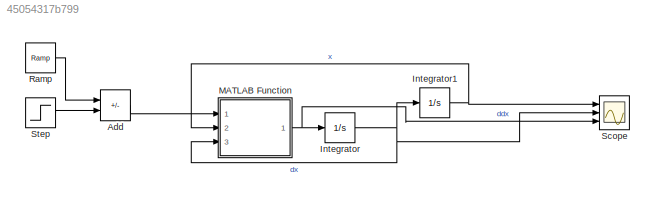
MODEL slx_45054317b799
KIND model
CONFIG AbsTol = auto
CONFIG EnableMultiTasking = off
CONFIG FixedStep = auto
CONFIG MaxStep = auto
CONFIG MinStep = auto
CONFIG RelTol = 1e-3
CONFIG SampleTimeConstraint = Unconstrained
CONFIG SolverName = VariableStepAuto
CONFIG StartTime = 0.0
CONFIG StopTime = 10.0
BLOCK [Sum] Add
  IconShape = rectangular
  Inputs = +-
  Ports = [2, 1]
BLOCK [Integrator] Integrator
  Ports = [1, 1]
BLOCK [Integrator] Integrator1
  Ports = [1, 1]
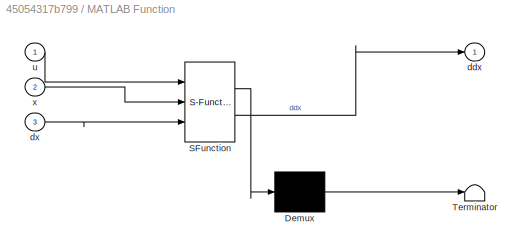
BLOCK [SubSystem] MATLAB Function
  ErrorFcn = Stateflow.Translate.translate
  PermitHierarchicalResolution = ExplicitOnly
  Ports = [3, 1]
  RequestExecContextInheritance = off
  SFBlockType = MATLAB Function
  TreatAsAtomicUnit = on
BLOCK [Demux] MATLAB Function/ Demux 
  Outputs = 1
  Ports = [1, 1]
BLOCK [S-Function] MATLAB Function/ SFunction 
  EnableBusSupport = on
  FunctionName = sf_sfun
  Parameters = B_hs,K_hs,M,M_L,gn,gp
  PortCounts = [3 2]
  Ports = [3, 2]
  SFcnIsStateOwnerBlock = off
  SFunctionDeploymentMode = off
  Tag = Stateflow S-Function 2
BLOCK [Terminator] MATLAB Function/ Terminator 
BLOCK [Outport] MATLAB Function/ddx
BLOCK [Inport] MATLAB Function/dx
  Port = 3
BLOCK [Inport] MATLAB Function/u
BLOCK [Inport] MATLAB Function/x
  Port = 2
BLOCK [Reference] Ramp  REF=simulink/Sources/Ramp
  Ports = [0, 1]
  SourceBlock = simulink/Sources/Ramp
  SourceProductBaseCode = SL
  SourceType = Ramp
BLOCK [Scope] Scope
  Floating = off
  NumInputPorts = 3
  Ports = [3]
  ScopeSpecificationString = Simulink.scopes.TimeScopeBlockCfg('CurrentConfiguration', extmgr.ConfigurationSet(extmgr.Configuration('Core','General UI',true),extmgr.Configuration('Core','Source UI',true),extmgr.Configuration('Sources','WiredSimulink',true),extmgr.Configuration('Visuals','Time Domain',true,'SerializedDisplays',{struct('MinYLimReal','-0.02608','MaxYLimReal','0.22571','YLabelReal','','MinYLimMag','0.00000','MaxY...<+6292ch>
BLOCK [Step] Step
  After = 20
  SampleTime = 0
  Time = 0
LINE Add:1 -> MATLAB Function:1
NET Integrator1:1 -> MATLAB Function:2, Scope:1
NET Integrator:1 -> Integrator1:1, MATLAB Function:3, Scope:2
NET MATLAB Function:1 -> Integrator:1, Scope:3
LINE Ramp:1 -> Add:1
LINE Step:1 -> Add:2
note: NET lines group one-source signal fan-out (src -> all destinations, sorted); 1:1 wires keep LINE
CHART MATLAB Function states=1 transitions=1
  STATE_LABEL 'eML_blk_kernel()'
  STATE_LABEL 'SCRIPT:\nfunction ddx = fcn(u, x, dx, K_hs, B_hs, gp, gn, M, M_L)\n\n% Hard Stop\nup_force = K_hs*(x-gp) + B_hs*dx*ge(dx,0);\nbot_force = K_hs*(x-gn) + B_hs*dx*le(dx,0);\n% up_force = K_hs*(x-gp) + B_hs*dx*abs(x-gp);\n% bot_force = K_hs*(x-gn) + B_hs*dx*abs(x-gn);\n\n% Dead zone calculating Hard Stop\nif x >= gp\n    F_hs = up_force;\nelseif x > gn\n    F_hs = 0;\nelse\n    F_hs = bot_force;\nend\nF_g = (M + M_L)*...<+44ch>'
CHART  states=0 transitions=0
